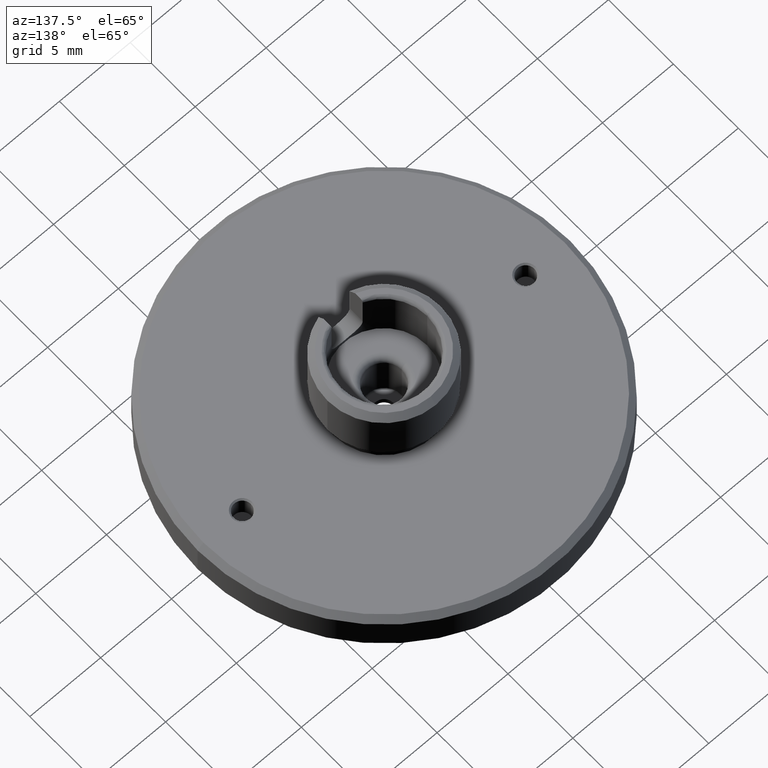
[diagram: clean part render]
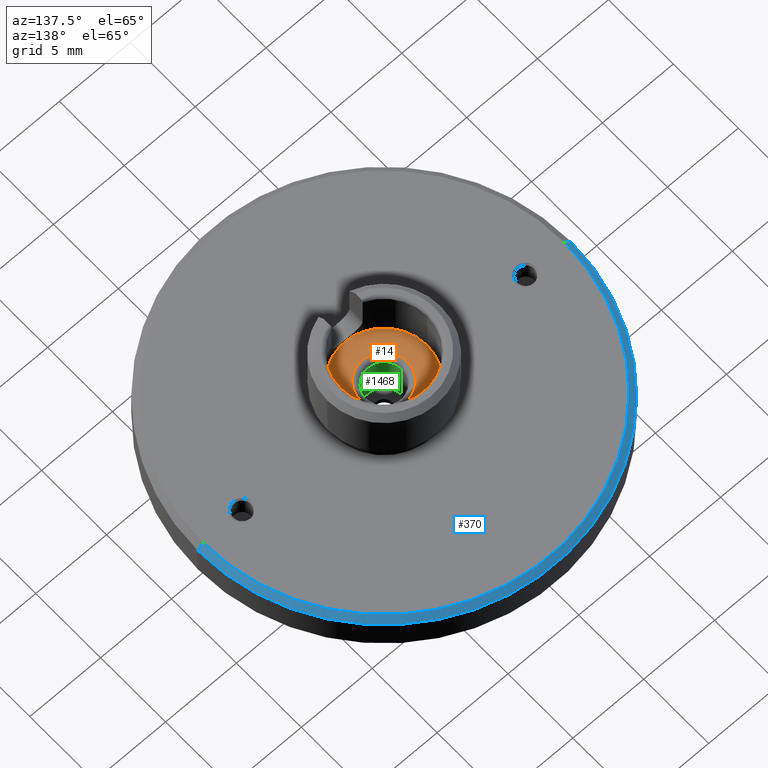
[diagram: same view with three faces highlighted in distinct colors, each labeled with its STEP entity id]
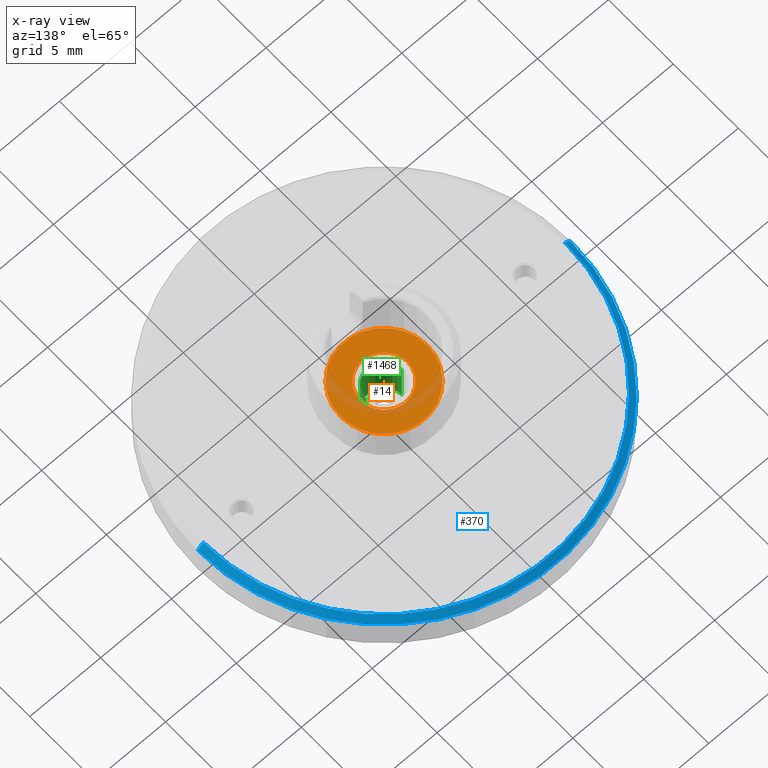
[diagram: x-ray of the same camera — body ghosted, the three highlighted faces saturated]
A machine part, auxiliary view with three faces highlighted in distinct colors.
The next image is the same camera in x-ray (body ghosted, the three faces saturated) — at least one of them is partly hidden behind the body in this view.
Their STEP definitions:

[orange] entity #14 — the highlighted planar face has unit normal (0, 0, 1).
#14 = ADVANCED_FACE ( 'NONE', ( #251, #780 ), #368, .T. ) ;
#72 = CIRCLE ( 'NONE', #1026, 3.049999999999999822 ) ;
#104 = DIRECTION ( 'NONE',  ( -0.000000000000000000, 0.000000000000000000, -1.000000000000000000 ) ) ;
#124 = VERTEX_POINT ( 'NONE', #288 ) ;
#161 = CARTESIAN_POINT ( 'NONE',  ( 0.000000000000000000, 0.000000000000000000, 4.500000000000000888 ) ) ;
#214 = EDGE_CURVE ( 'NONE', #124, #1124, #1606, .T. ) ;
#226 = CARTESIAN_POINT ( 'NONE',  ( 0.000000000000000000, 0.000000000000000000, 4.499999999889212177 ) ) ;
#251 = FACE_BOUND ( 'NONE', #1347, .T. ) ;
#260 = CIRCLE ( 'NONE', #1646, 1.650000002521200049 ) ;
#272 = CARTESIAN_POINT ( 'NONE',  ( 3.049999999999999822, 0.000000000000000000, 4.500000000000000888 ) ) ;
#283 = CARTESIAN_POINT ( 'NONE',  ( -1.650000001423734819, 2.020667220336705422E-16, 4.499999999889212177 ) ) ;
#288 = CARTESIAN_POINT ( 'NONE',  ( 1.650000001423734819, 0.000000000000000000, 4.499999999889212177 ) ) ;
#321 = EDGE_CURVE ( 'NONE', #1529, #1502, #72, .T. ) ;
#330 = DIRECTION ( 'NONE',  ( 1.000000000000000000, 0.000000000000000000, 0.000000000000000000 ) ) ;
#335 = CIRCLE ( 'NONE', #1082, 3.049999999999999822 ) ;
#368 = PLANE ( 'NONE',  #479 ) ;
#451 = CARTESIAN_POINT ( 'NONE',  ( 0.000000000000000000, 0.000000000000000000, 4.500000000000000888 ) ) ;
#479 = AXIS2_PLACEMENT_3D ( 'NONE', #1031, #796, #664 ) ;
#489 = DIRECTION ( 'NONE',  ( 1.000000000000000000, 0.000000000000000000, 0.000000000000000000 ) ) ;
#554 = ORIENTED_EDGE ( 'NONE', *, *, #321, .F. ) ;
#556 = AXIS2_PLACEMENT_3D ( 'NONE', #772, #1285, #489 ) ;
#664 = DIRECTION ( 'NONE',  ( 1.000000000000000000, 0.000000000000000000, 0.000000000000000000 ) ) ;
#683 = DIRECTION ( 'NONE',  ( -0.000000000000000000, 0.000000000000000000, -1.000000000000000000 ) ) ;
#772 = CARTESIAN_POINT ( 'NONE',  ( 0.000000000000000000, 0.000000000000000000, 4.499999999889212177 ) ) ;
#780 = FACE_OUTER_BOUND ( 'NONE', #1131, .T. ) ;
#796 = DIRECTION ( 'NONE',  ( 0.000000000000000000, 0.000000000000000000, 1.000000000000000000 ) ) ;
#807 = ORIENTED_EDGE ( 'NONE', *, *, #214, .T. ) ;
#811 = EDGE_CURVE ( 'NONE', #1502, #1529, #335, .T. ) ;
#893 = DIRECTION ( 'NONE',  ( 1.000000000000000000, 0.000000000000000000, 0.000000000000000000 ) ) ;
#1026 = AXIS2_PLACEMENT_3D ( 'NONE', #451, #1518, #330 ) ;
#1031 = CARTESIAN_POINT ( 'NONE',  ( -3.086599999999999788, -3.086599999999999788, 4.500000000000000888 ) ) ;
#1072 = CARTESIAN_POINT ( 'NONE',  ( -3.049999999999999822, 3.735172737399427146E-16, 4.500000000000000888 ) ) ;
#1082 = AXIS2_PLACEMENT_3D ( 'NONE', #161, #683, #1483 ) ;
#1124 = VERTEX_POINT ( 'NONE', #283 ) ;
#1131 = EDGE_LOOP ( 'NONE', ( #1332, #554 ) ) ;
#1285 = DIRECTION ( 'NONE',  ( -0.000000000000000000, 0.000000000000000000, -1.000000000000000000 ) ) ;
#1332 = ORIENTED_EDGE ( 'NONE', *, *, #811, .F. ) ;
#1347 = EDGE_LOOP ( 'NONE', ( #807, #1616 ) ) ;
#1483 = DIRECTION ( 'NONE',  ( 1.000000000000000000, 0.000000000000000000, 0.000000000000000000 ) ) ;
#1502 = VERTEX_POINT ( 'NONE', #272 ) ;
#1518 = DIRECTION ( 'NONE',  ( -0.000000000000000000, 0.000000000000000000, -1.000000000000000000 ) ) ;
#1529 = VERTEX_POINT ( 'NONE', #1072 ) ;
#1606 = CIRCLE ( 'NONE', #556, 1.650000002521200049 ) ;
#1616 = ORIENTED_EDGE ( 'NONE', *, *, #1680, .T. ) ;
#1646 = AXIS2_PLACEMENT_3D ( 'NONE', #226, #104, #893 ) ;
#1680 = EDGE_CURVE ( 'NONE', #1124, #124, #260, .T. ) ;

[blue] entity #370 — the highlighted conical surface has half-angle 45 deg.
#16 = VERTEX_POINT ( 'NONE', #502 ) ;
#34 = DIRECTION ( 'NONE',  ( 0.000000000000000000, 0.000000000000000000, -1.000000000000000000 ) ) ;
#81 = DIRECTION ( 'NONE',  ( -1.000000000000000000, 0.000000000000000000, 5.738438874904266625E-15 ) ) ;
#167 = CARTESIAN_POINT ( 'NONE',  ( -12.75000000000000178, 0.000000000000000000, 3.100000000000000533 ) ) ;
#187 = CARTESIAN_POINT ( 'NONE',  ( 0.000000000000000000, 0.000000000000000000, 3.100000000000000533 ) ) ;
#196 = CARTESIAN_POINT ( 'NONE',  ( -13.15000000000000036, 0.000000000000000000, 2.700000000000000178 ) ) ;
#197 = EDGE_LOOP ( 'NONE', ( #594, #524, #970, #279 ) ) ;
#207 = LINE ( 'NONE', #1659, #1002 ) ;
#243 = AXIS2_PLACEMENT_3D ( 'NONE', #1268, #1395, #603 ) ;
#279 = ORIENTED_EDGE ( 'NONE', *, *, #485, .F. ) ;
#340 = DIRECTION ( 'NONE',  ( 0.000000000000000000, 0.000000000000000000, -1.000000000000000000 ) ) ;
#370 = ADVANCED_FACE ( 'NONE', ( #833 ), #1355, .T. ) ;
#410 = CIRCLE ( 'NONE', #243, 12.74999999999989875 ) ;
#431 = DIRECTION ( 'NONE',  ( -0.7071067811865467956, 0.000000000000000000, -0.7071067811865483499 ) ) ;
#441 = LINE ( 'NONE', #167, #744 ) ;
#485 = EDGE_CURVE ( 'NONE', #16, #510, #441, .T. ) ;
#502 = CARTESIAN_POINT ( 'NONE',  ( -12.74999999999989875, 0.000000000000000000, 3.100000000000102673 ) ) ;
#510 = VERTEX_POINT ( 'NONE', #196 ) ;
#511 = EDGE_CURVE ( 'NONE', #510, #814, #1138, .T. ) ;
#524 = ORIENTED_EDGE ( 'NONE', *, *, #892, .T. ) ;
#555 = AXIS2_PLACEMENT_3D ( 'NONE', #593, #340, #81 ) ;
#593 = CARTESIAN_POINT ( 'NONE',  ( 0.000000000000000000, 0.000000000000000000, 2.699999999999924682 ) ) ;
#594 = ORIENTED_EDGE ( 'NONE', *, *, #918, .F. ) ;
#602 = VERTEX_POINT ( 'NONE', #740 ) ;
#603 = DIRECTION ( 'NONE',  ( -1.000000000000000000, 0.000000000000000000, 0.000000000000000000 ) ) ;
#693 = CARTESIAN_POINT ( 'NONE',  ( 13.15000000000000036, 1.610410540878769328E-15, 2.699999999999924682 ) ) ;
#740 = CARTESIAN_POINT ( 'NONE',  ( 12.74999999999989875, 1.585917604895816106E-15, 3.100000000000102673 ) ) ;
#744 = VECTOR ( 'NONE', #431, 999.9999999999998863 ) ;
#814 = VERTEX_POINT ( 'NONE', #693 ) ;
#833 = FACE_OUTER_BOUND ( 'NONE', #197, .T. ) ;
#892 = EDGE_CURVE ( 'NONE', #602, #814, #207, .T. ) ;
#918 = EDGE_CURVE ( 'NONE', #602, #16, #410, .T. ) ;
#970 = ORIENTED_EDGE ( 'NONE', *, *, #511, .F. ) ;
#1002 = VECTOR ( 'NONE', #1288, 999.9999999999998863 ) ;
#1138 = CIRCLE ( 'NONE', #555, 13.15000000000000036 ) ;
#1245 = DIRECTION ( 'NONE',  ( -1.000000000000000000, 0.000000000000000000, 0.000000000000000000 ) ) ;
#1253 = AXIS2_PLACEMENT_3D ( 'NONE', #187, #34, #1245 ) ;
#1268 = CARTESIAN_POINT ( 'NONE',  ( 0.000000000000000000, 0.000000000000000000, 3.100000000000102673 ) ) ;
#1288 = DIRECTION ( 'NONE',  ( 0.7071067811865467956, 8.659560562354925463E-17, -0.7071067811865483499 ) ) ;
#1355 = CONICAL_SURFACE ( 'NONE', #1253, 12.75000000000000178, 0.7853981633974472798 ) ;
#1395 = DIRECTION ( 'NONE',  ( -0.000000000000000000, -0.000000000000000000, 1.000000000000000000 ) ) ;
#1659 = CARTESIAN_POINT ( 'NONE',  ( 12.75000000000000178, 1.561424668912875506E-15, 3.100000000000000533 ) ) ;

[green] entity #1468 — the highlighted cylindrical surface (edge-blend (fillet) strip) has radius 1.25 mm, axis along (0, 0, 1).
#43 = DIRECTION ( 'NONE',  ( 0.000000000000000000, 0.000000000000000000, 1.000000000000000000 ) ) ;
#59 = CARTESIAN_POINT ( 'NONE',  ( 1.250000000093565378, 0.000000000000000000, 1.000000000045362158 ) ) ;
#99 = VECTOR ( 'NONE', #1485, 1000.000000000000000 ) ;
#123 = CARTESIAN_POINT ( 'NONE',  ( -1.250000000000000000, 1.530808498934191571E-16, 1.000000000000000000 ) ) ;
#136 = EDGE_CURVE ( 'NONE', #856, #545, #582, .T. ) ;
#153 = VECTOR ( 'NONE', #944, 1000.000000000000000 ) ;
#210 = CARTESIAN_POINT ( 'NONE',  ( -1.250000000093565378, -3.845689284662459855E-10, 1.000000000045362158 ) ) ;
#255 = DIRECTION ( 'NONE',  ( 1.000000000000000000, 0.000000000000000000, 0.000000000000000000 ) ) ;
#373 = EDGE_LOOP ( 'NONE', ( #567, #1089, #1019, #725 ) ) ;
#397 = AXIS2_PLACEMENT_3D ( 'NONE', #924, #43, #936 ) ;
#409 = CARTESIAN_POINT ( 'NONE',  ( 0.000000000000000000, 0.000000000000000000, 4.099999999879579526 ) ) ;
#421 = VERTEX_POINT ( 'NONE', #585 ) ;
#475 = CARTESIAN_POINT ( 'NONE',  ( 1.250000000108329345, 0.000000000000000000, 4.099999999879578638 ) ) ;
#545 = VERTEX_POINT ( 'NONE', #475 ) ;
#567 = ORIENTED_EDGE ( 'NONE', *, *, #1171, .T. ) ;
#570 = CIRCLE ( 'NONE', #849, 1.250000000108329345 ) ;
#582 = LINE ( 'NONE', #1110, #99 ) ;
#585 = CARTESIAN_POINT ( 'NONE',  ( -1.250000000108329345, 1.530808499066856774E-16, 4.099999999879579526 ) ) ;
#652 = DIRECTION ( 'NONE',  ( -0.000000000000000000, 0.000000000000000000, -1.000000000000000000 ) ) ;
#653 = VERTEX_POINT ( 'NONE', #210 ) ;
#660 = CYLINDRICAL_SURFACE ( 'NONE', #397, 1.250000000000000000 ) ;
#725 = ORIENTED_EDGE ( 'NONE', *, *, #136, .F. ) ;
#849 = AXIS2_PLACEMENT_3D ( 'NONE', #409, #652, #1458 ) ;
#856 = VERTEX_POINT ( 'NONE', #59 ) ;
#924 = CARTESIAN_POINT ( 'NONE',  ( 0.000000000000000000, 0.000000000000000000, 1.000000000000000000 ) ) ;
#936 = DIRECTION ( 'NONE',  ( 1.000000000000000000, 0.000000000000000000, 0.000000000000000000 ) ) ;
#944 = DIRECTION ( 'NONE',  ( 0.000000000000000000, 0.000000000000000000, 1.000000000000000000 ) ) ;
#1019 = ORIENTED_EDGE ( 'NONE', *, *, #1143, .F. ) ;
#1047 = DIRECTION ( 'NONE',  ( -0.000000000000000000, -0.000000000000000000, -1.000000000000000000 ) ) ;
#1064 = CIRCLE ( 'NONE', #1585, 1.250000000000000000 ) ;
#1085 = FACE_OUTER_BOUND ( 'NONE', #373, .T. ) ;
#1089 = ORIENTED_EDGE ( 'NONE', *, *, #1182, .T. ) ;
#1110 = CARTESIAN_POINT ( 'NONE',  ( 1.250000000000000000, 0.000000000000000000, 1.000000000000000000 ) ) ;
#1143 = EDGE_CURVE ( 'NONE', #545, #421, #570, .T. ) ;
#1171 = EDGE_CURVE ( 'NONE', #856, #653, #1064, .T. ) ;
#1182 = EDGE_CURVE ( 'NONE', #653, #421, #1441, .T. ) ;
#1441 = LINE ( 'NONE', #123, #153 ) ;
#1458 = DIRECTION ( 'NONE',  ( 1.000000000000000000, 0.000000000000000000, -6.938893903305879710E-16 ) ) ;
#1468 = ADVANCED_FACE ( 'NONE', ( #1085 ), #660, .F. ) ;
#1485 = DIRECTION ( 'NONE',  ( 0.000000000000000000, 0.000000000000000000, 1.000000000000000000 ) ) ;
#1585 = AXIS2_PLACEMENT_3D ( 'NONE', #1597, #1047, #255 ) ;
#1597 = CARTESIAN_POINT ( 'NONE',  ( 0.000000000000000000, 0.000000000000000000, 1.000000000000000000 ) ) ;